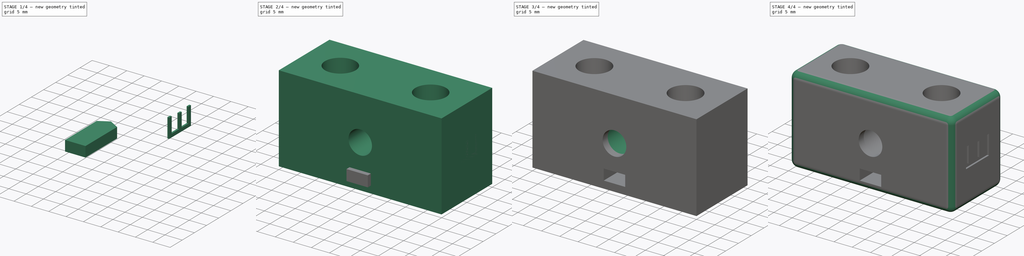
[diagram: build sequence overview — one tinted view per stage of 4, left to right]
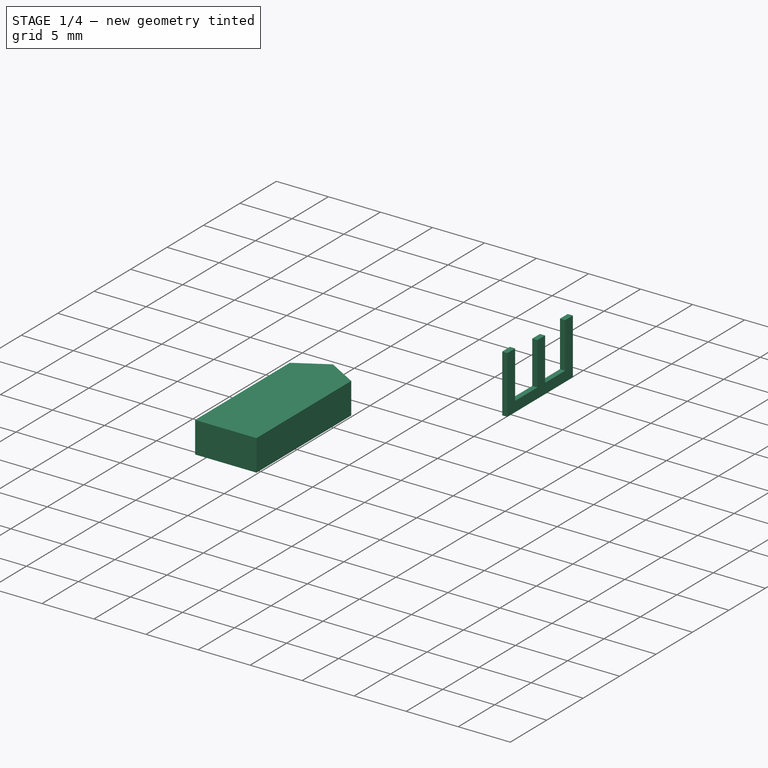
[diagram: stage 1 of 4 — iso view after this stage's code; geometry added in this stage tinted green]
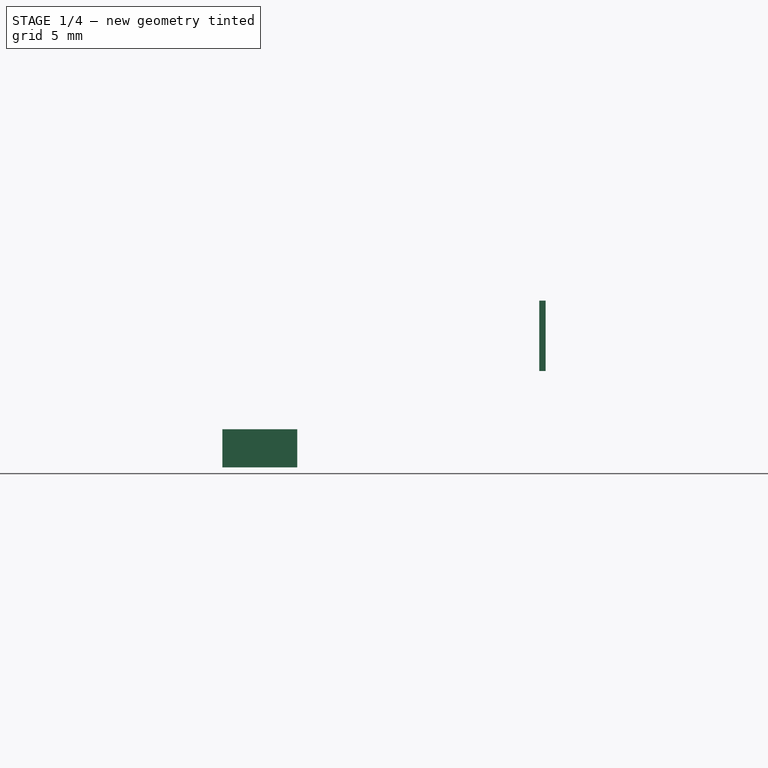
[diagram: stage 1 of 4 — front view after this stage's code; geometry added in this stage tinted green]
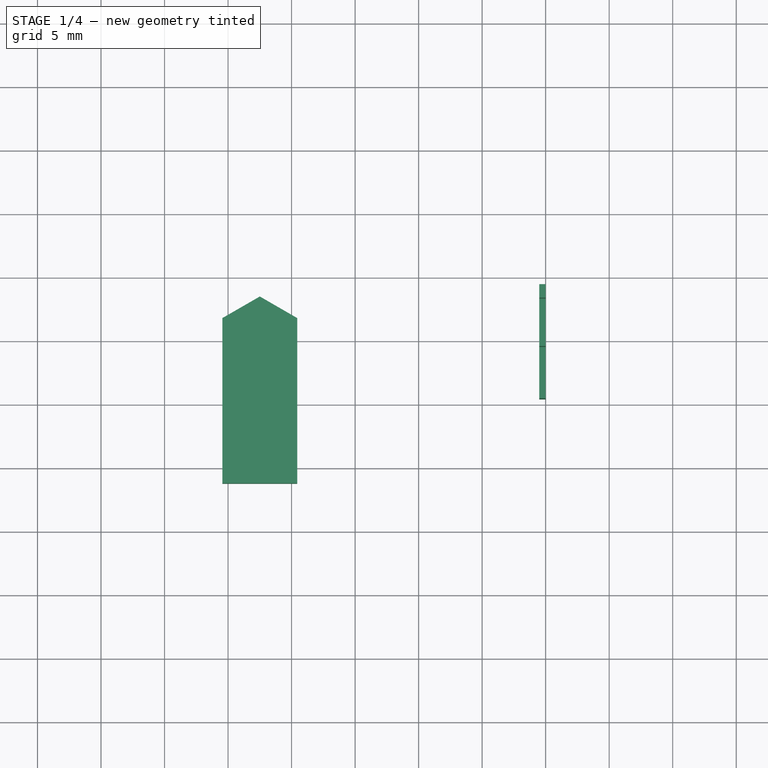
[diagram: stage 1 of 4 — top view after this stage's code; geometry added in this stage tinted green]
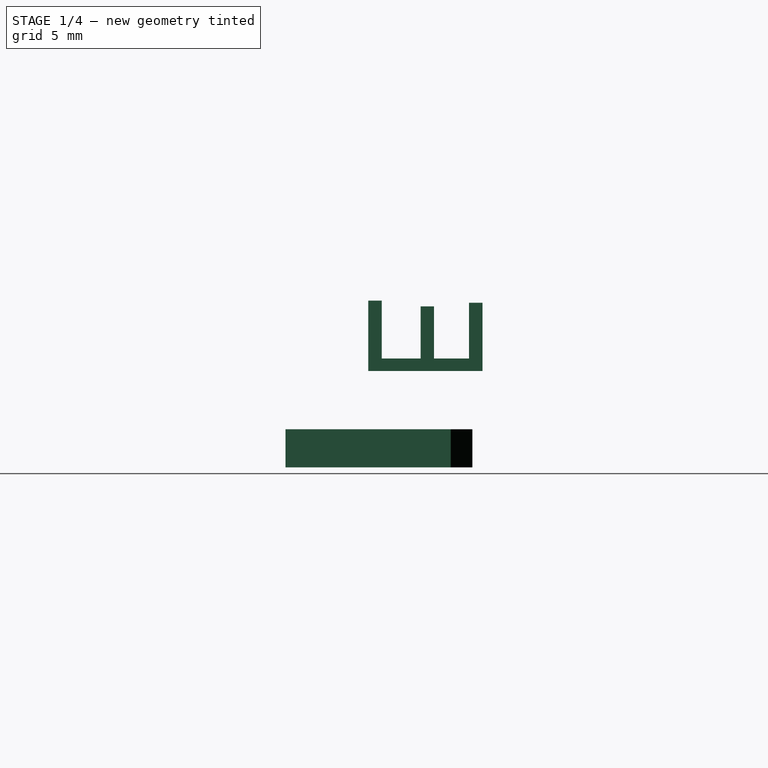
[diagram: stage 1 of 4 — right view after this stage's code; geometry added in this stage tinted green]
FCSTD DOCUMENT
Label: laser-holder
objects: Sketcher::SketchObject×5, PartDesign::Pocket×3, PartDesign::Pad×2, Part::Cut×2, Part::Feature×1, Part::Extrusion×1, Part::Fillet×1
note: 20 computed .brp shape members not serialized (recipe doc carries the construction recipe); baked Part::Feature solids carry a one-line shape summary decoded from their .brp

FEATURE [Sketcher::SketchObject] Sketch005  label="Sketch M3"
  Placement = pos=(22.5,13.5,5) rot=(1,0,0;3.14159rad)
  sketch-geometry (6):
    g0: LineSegment StartX=-2.95 StartY=14.7032 StartZ=0 EndX=-2.95 EndY=1.70318 EndZ=0
    g1: LineSegment StartX=-2.95 StartY=1.70318 StartZ=0 EndX=0 EndY=0 EndZ=0
    g2: LineSegment StartX=0 StartY=0 StartZ=0 EndX=2.95 EndY=1.70318 EndZ=0
    g3: LineSegment StartX=2.95 StartY=1.70318 StartZ=0 EndX=2.95 EndY=14.7032 EndZ=0
    g4: LineSegment StartX=2.95 StartY=14.7032 StartZ=0 EndX=-2.95 EndY=14.7032 EndZ=0
    g5: LineSegment [constr] StartX=0 StartY=0 StartZ=0 EndX=0 EndY=14.7032 EndZ=0
  constraints (17):
    c: Vertical(g0)
    c: Coincident(g0,g1)
    c: Coincident(g1,g2)
    c: Coincident(g2,g3)
    c: Vertical(g3)
    c: Coincident(g3,g4)
    c: Coincident(g4,g0)
    c: Horizontal(g4)
    c: Coincident(g5,g1)
    c: PointOnObject(g5,g4)
    c: Vertical(g5)
    c: Symmetric(g0,g2,g5)
    c: Angle(g2,g1) = 2.0944
    c: DistanceY(g3) = 13
    c: DistanceX(g4) = -5.9
    c: PointOnObject(g1,g-2)
    c: PointOnObject(g1,g-1)
FEATURE [PartDesign::Pad] Pad001  label="Alojamiento tuerca M3"
  Length = 3
  Length2 = 100
  Placement = pos=(22.5,13.5,5) rot=(1,0,0;3.14159rad)
  Sketch = -> Sketch005
  Type = 0
FEATURE [Part::Feature] path2990  label="Letra E"
  Placement = pos=(45,10,10) rot=(0,-1,0;1.5708rad)
  shape: bbox 2.2e-07 x 8.988 x 5.542 mm, 0 faces, 0 solids (baked)
FEATURE [Part::Extrusion] Extrude001  label="Letra E extruida"
  Base = -> path2990
  Dir = (-0.5,0,0)
  Solid = true
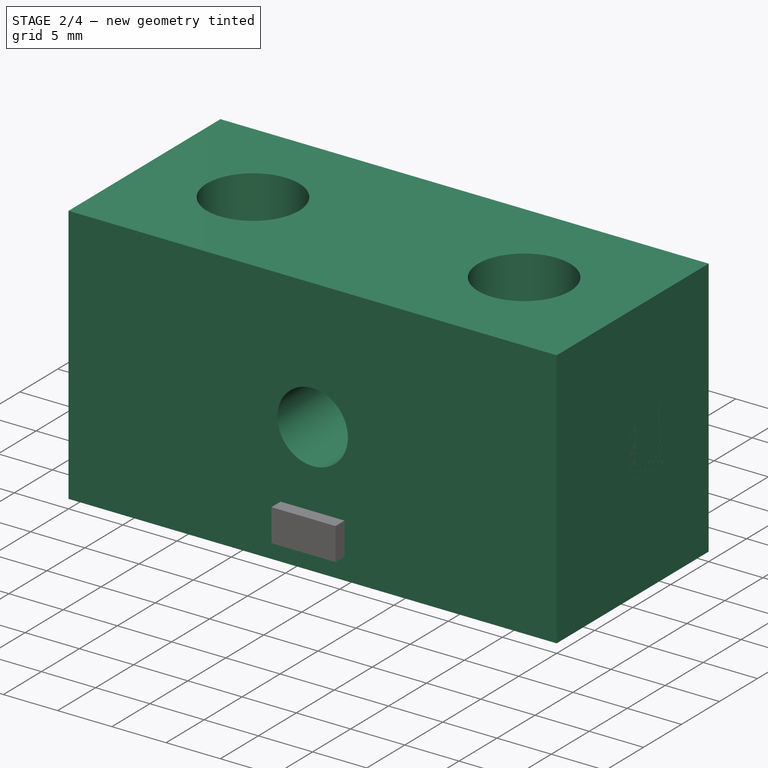
[diagram: stage 2 of 4 — iso view after this stage's code; geometry added in this stage tinted green]
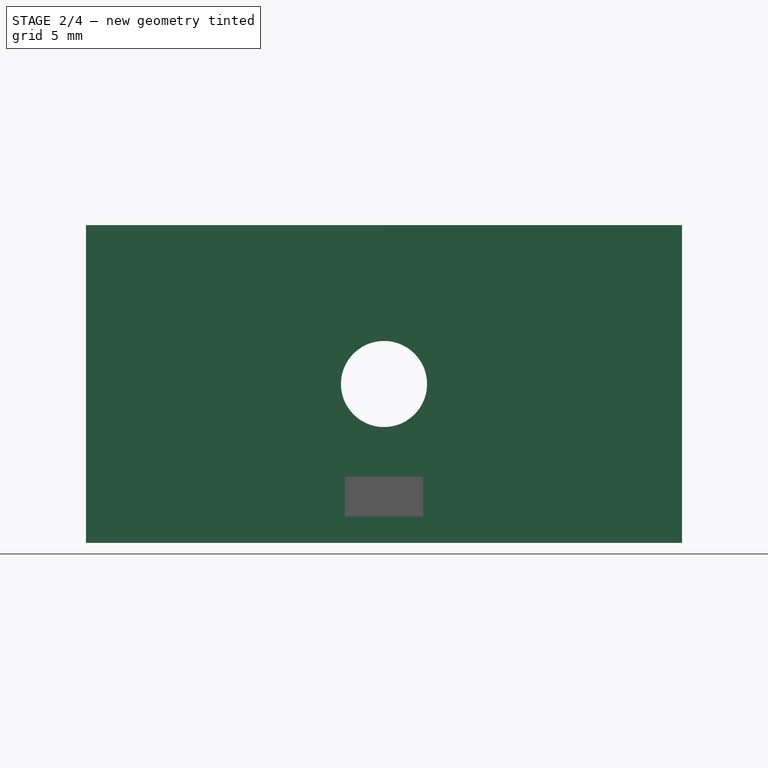
[diagram: stage 2 of 4 — front view after this stage's code; geometry added in this stage tinted green]
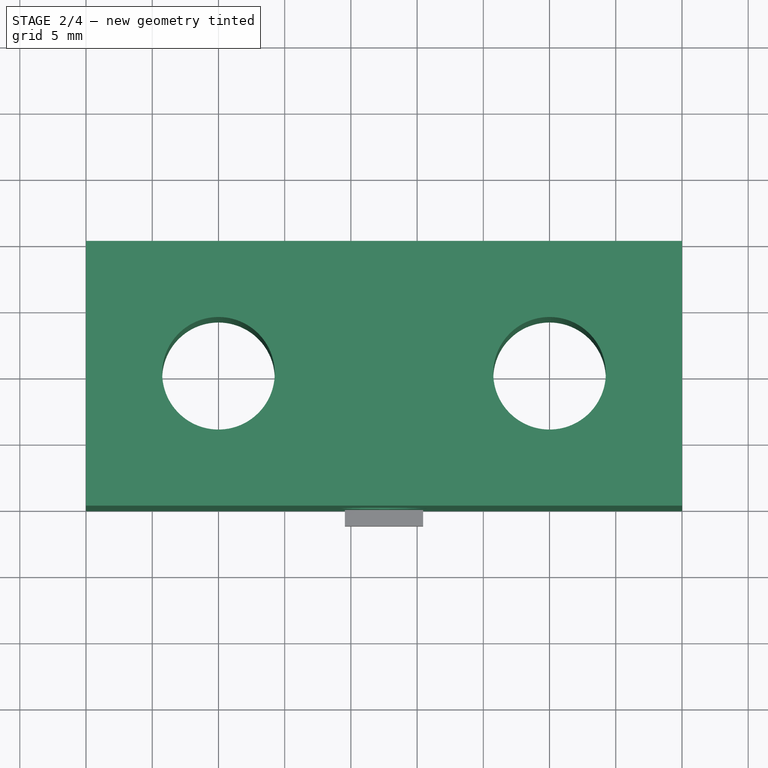
[diagram: stage 2 of 4 — top view after this stage's code; geometry added in this stage tinted green]
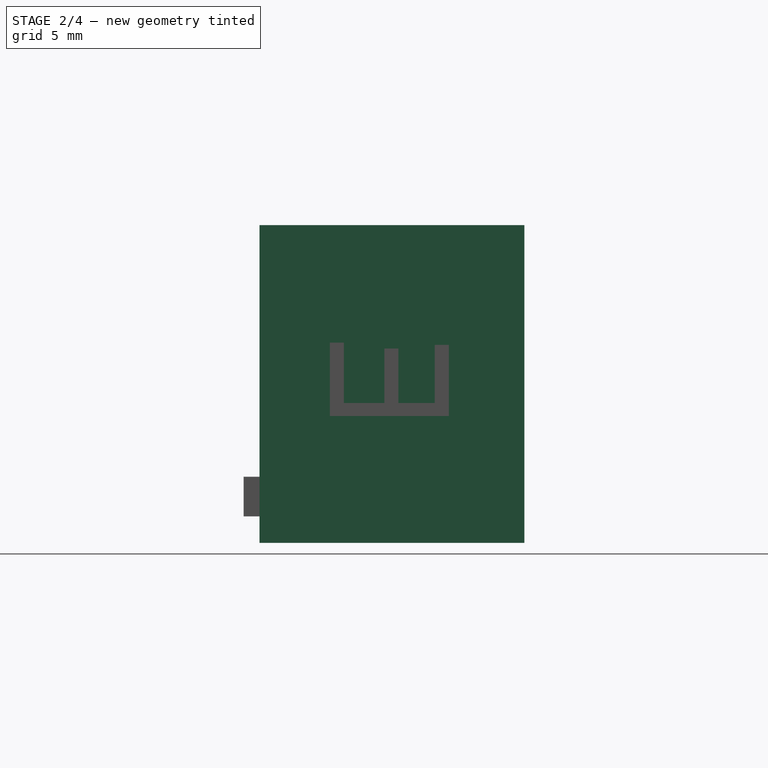
[diagram: stage 2 of 4 — right view after this stage's code; geometry added in this stage tinted green]
FEATURE [Sketcher::SketchObject] Sketch  label="Sketch principal"
  sketch-geometry (7):
    g0: LineSegment StartX=45 StartY=20 StartZ=0 EndX=0 EndY=20 EndZ=0
    g1: LineSegment StartX=0 StartY=20 StartZ=0 EndX=0 EndY=0 EndZ=0
    g2: LineSegment StartX=0 StartY=0 StartZ=0 EndX=45 EndY=0 EndZ=0
    g3: Circle CenterX=10 CenterY=10 CenterZ=0 NormalX=0 NormalY=0 NormalZ=1 Radius=4.25
    g4: LineSegment StartX=45 StartY=20 StartZ=0 EndX=45 EndY=0 EndZ=0
    g5: Circle CenterX=35 CenterY=10 CenterZ=0 NormalX=0 NormalY=0 NormalZ=1 Radius=4.25
    g6: LineSegment [constr] StartX=22.5 StartY=20 StartZ=0 EndX=22.5 EndY=0 EndZ=0
  constraints (20):
    c: Horizontal(g0)
    c: Coincident(g0,g1)
    c: Vertical(g1)
    c: Coincident(g1,g2)
    c: Horizontal(g2)
    c: DistanceX(g0) = -45
    c: DistanceY(g1) = -20
    c: Radius(g3) = 4.25
    c: Vertical(g4)
    c: Coincident(g4,g0)
    c: Coincident(g4,g2)
    c: Coincident(g1,g-1)
    c: Distance(g3,g2) = 10
    c: Distance(g3,g1) = 10
    c: Vertical(g6)
    c: Distance(g6,g1) = 22.5
    c: Symmetric(g3,g5,g6)
    c: Equal(g5,g3)
    c: PointOnObject(g6,g0)
    c: PointOnObject(g6,g2)
FEATURE [PartDesign::Pad] Pad  label="Bloque principal"
  Length = 24
  Length2 = 100
  Sketch = -> Sketch
  Type = 0
FEATURE [Sketcher::SketchObject] Sketch001  label="Sketch 6.5mm"
  ExternalGeometry = -> [Pad]
  Placement = pos=(0,0,0) rot=(1,0,0;1.5708rad)
  Support = -> Pad [Face3]
  sketch-geometry (1):
    g0: Circle CenterX=22.5 CenterY=12 CenterZ=0 NormalX=0 NormalY=0 NormalZ=1 Radius=3.25
  constraints (3):
    c: Distance(g0,g-4) = 22.5
    c: Distance(g0,g-3) = 12
    c: Radius(g0) = 3.25
FEATURE [PartDesign::Pocket] Pocket  label="Agujero 6.5mm"
  Length = 5
  Sketch = -> Sketch001
  Type = 1
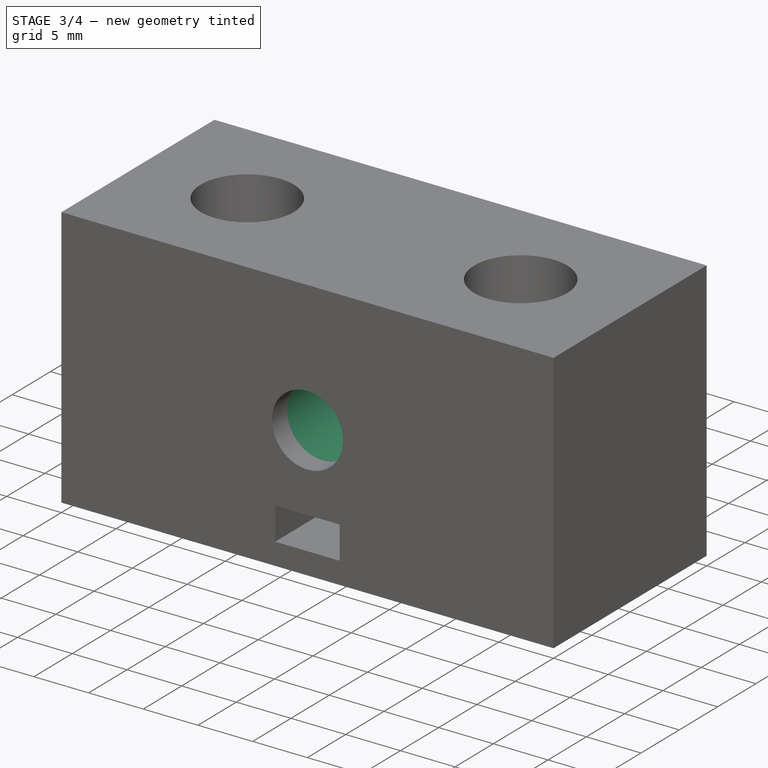
[diagram: stage 3 of 4 — iso view after this stage's code; geometry added in this stage tinted green]
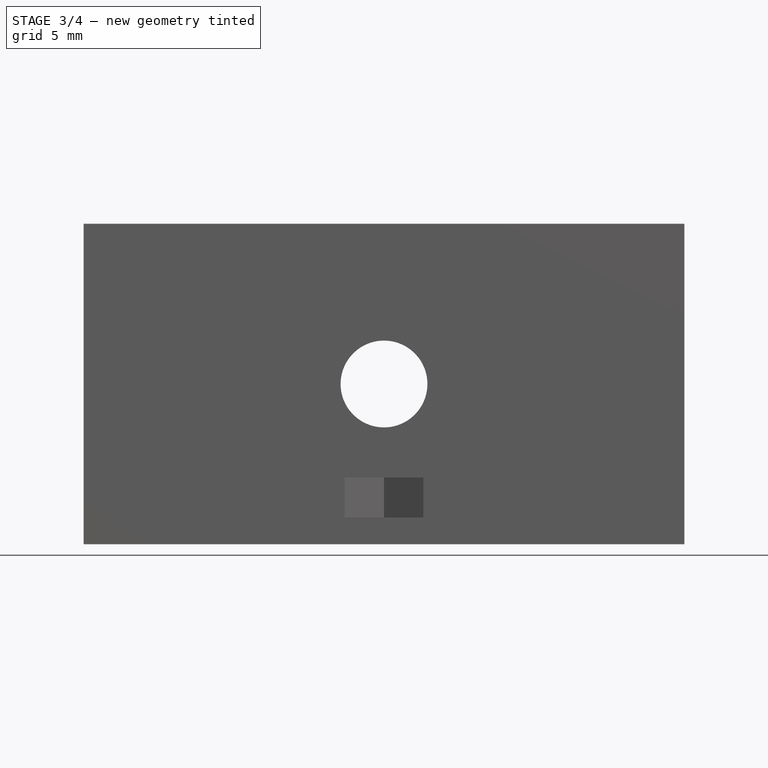
[diagram: stage 3 of 4 — front view after this stage's code; geometry added in this stage tinted green]
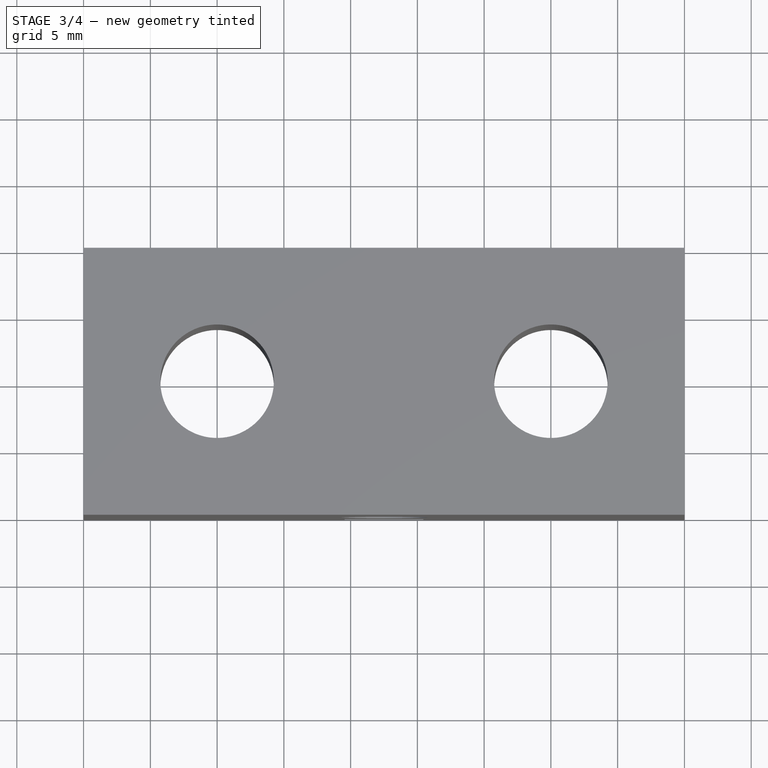
[diagram: stage 3 of 4 — top view after this stage's code; geometry added in this stage tinted green]
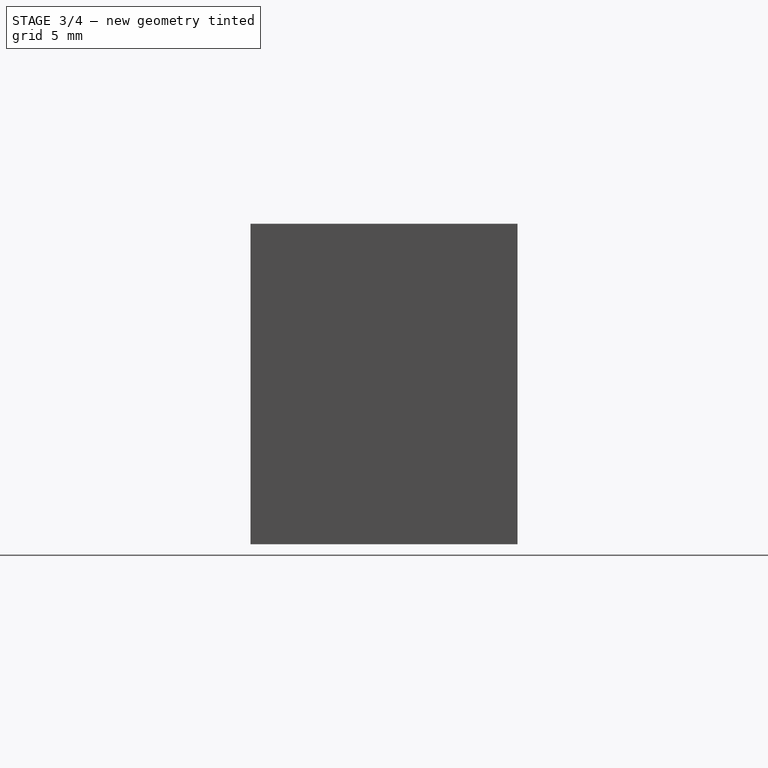
[diagram: stage 3 of 4 — right view after this stage's code; geometry added in this stage tinted green]
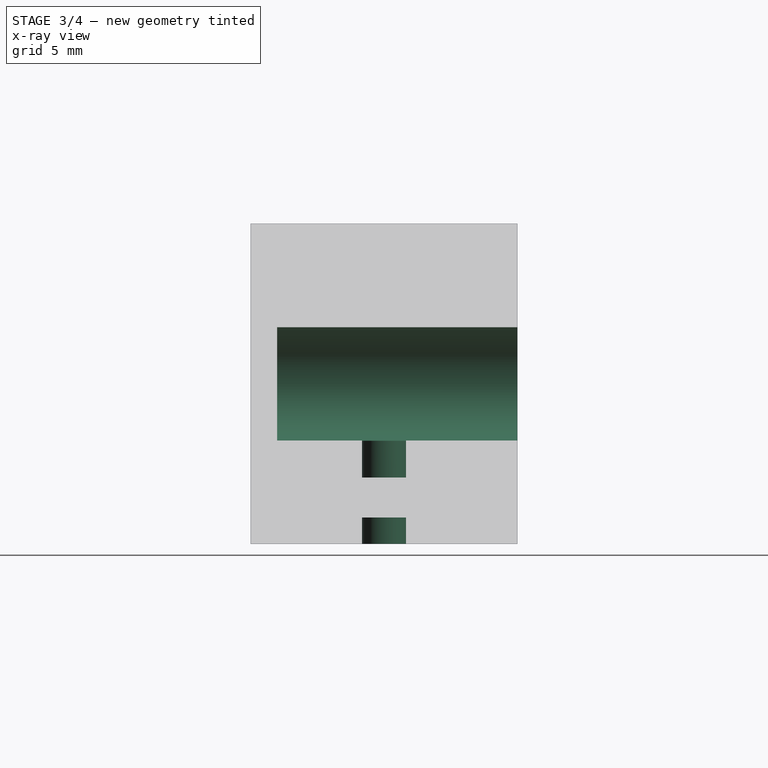
[diagram: stage 3 of 4 — x-ray composite at the right view; earlier geometry ghosted, this stage's added geometry solid]
FEATURE [Sketcher::SketchObject] Sketch003  label="Sketch 8.5mm"
  ExternalGeometry = -> [Pocket]
  Placement = pos=(0,20,0) rot=(0,0.707107,0.707107;3.14159rad)
  Support = -> Pocket [Face1]
  sketch-geometry (1):
    g0: Circle CenterX=-22.5 CenterY=12 CenterZ=0 NormalX=0 NormalY=0 NormalZ=1 Radius=4.25
  constraints (2):
    c: Coincident(g0,g-3)
    c: Radius(g0) = 4.25
FEATURE [PartDesign::Pocket] Pocket001  label="Agujero 8.5mm"
  Length = 18
  Sketch = -> Sketch003
  Type = 0
FEATURE [Sketcher::SketchObject] Sketch004  label="Sketch 3.3mm"
  Placement = pos=(0,0,0) rot=(1,0,0;3.14159rad)
  Support = -> Pocket001 [Face3]
  sketch-geometry (1):
    g0: Circle CenterX=22.5 CenterY=-10 CenterZ=0 NormalX=0 NormalY=0 NormalZ=1 Radius=1.65
  constraints (3):
    c: DistanceY(g-1,g0) = -10
    c: DistanceX(g-1,g0) = 22.5
    c: Radius(g0) = 1.65
FEATURE [PartDesign::Pocket] Pocket002  label="Agujero 3.3mm"
  Length = 7.75
  Sketch = -> Sketch004
  Type = 0
FEATURE [Part::Cut] Cut  label="Corte Tuerca M3"
  Base = -> Pocket002
  Tool = -> Pad001
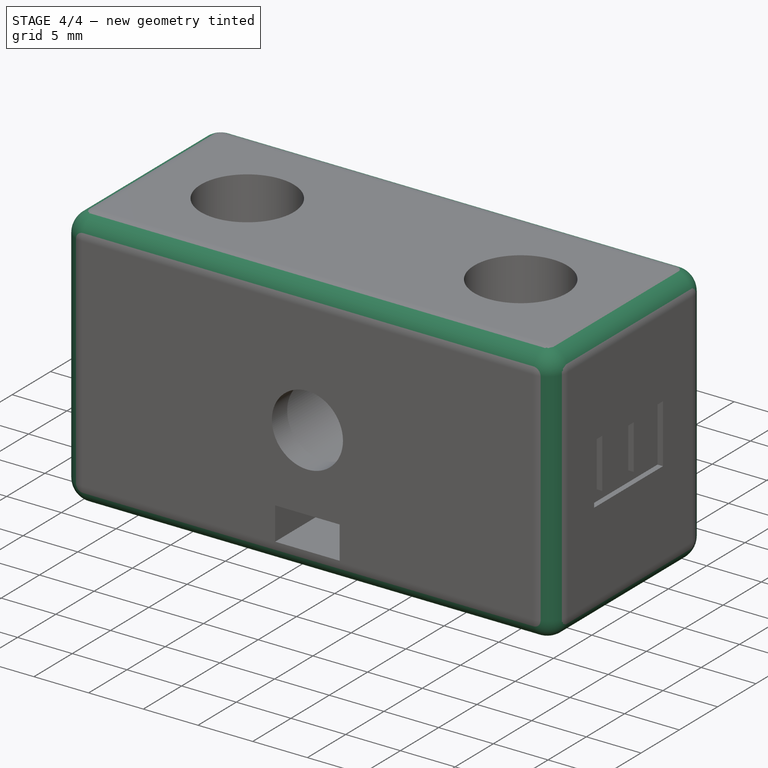
[diagram: stage 4 of 4 — iso view after this stage's code; geometry added in this stage tinted green]
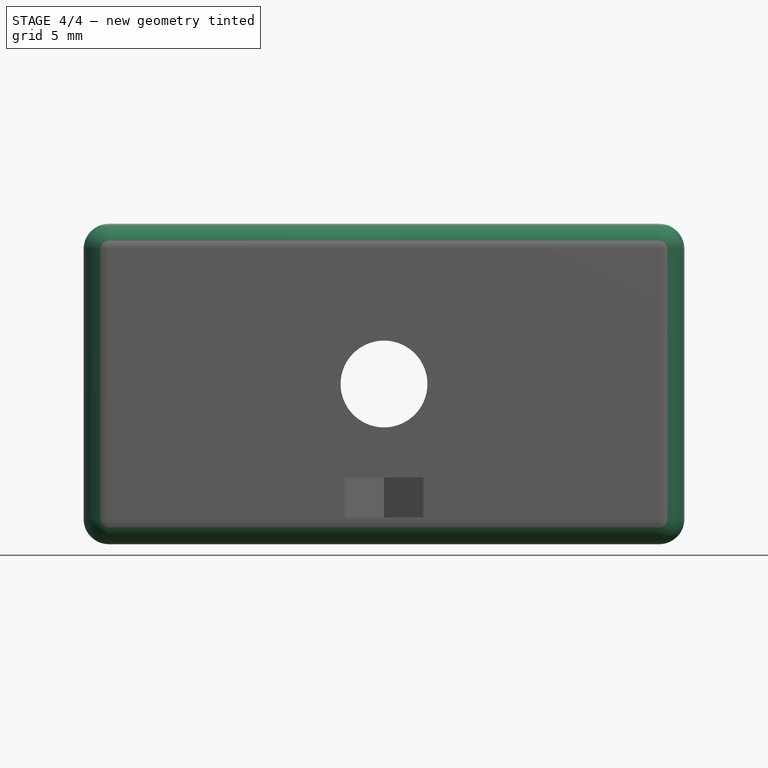
[diagram: stage 4 of 4 — front view after this stage's code; geometry added in this stage tinted green]
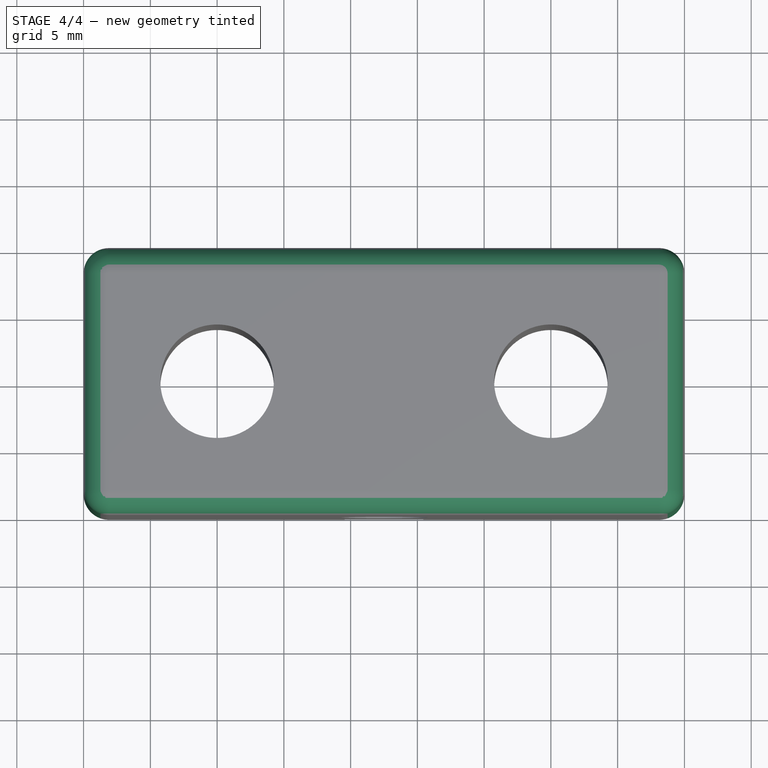
[diagram: stage 4 of 4 — top view after this stage's code; geometry added in this stage tinted green]
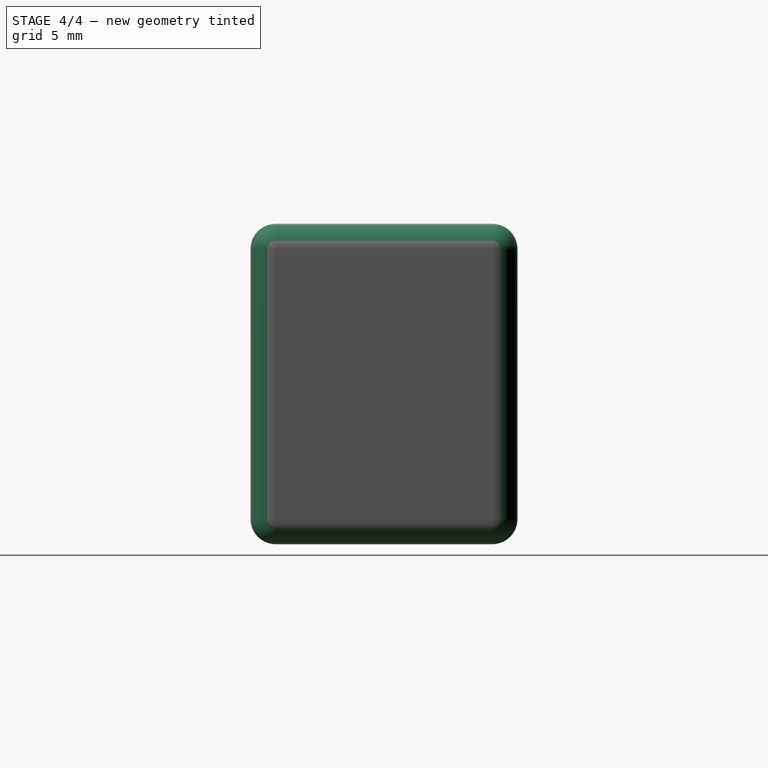
[diagram: stage 4 of 4 — right view after this stage's code; geometry added in this stage tinted green]
FEATURE [Part::Cut] Cut001  label="Corte Letra E"
  Base = -> Cut
  Tool = -> Extrude001
FEATURE [Part::Fillet] Fillet  label="Redondeo de bordes"
  Base = -> Cut001
  Edges = 12 edges r=1.9: [Edge1,Edge2,Edge3,Edge4,Edge6,Edge7,Edge8,Edge21,Edge22,Edge26,Edge27,Edge30]
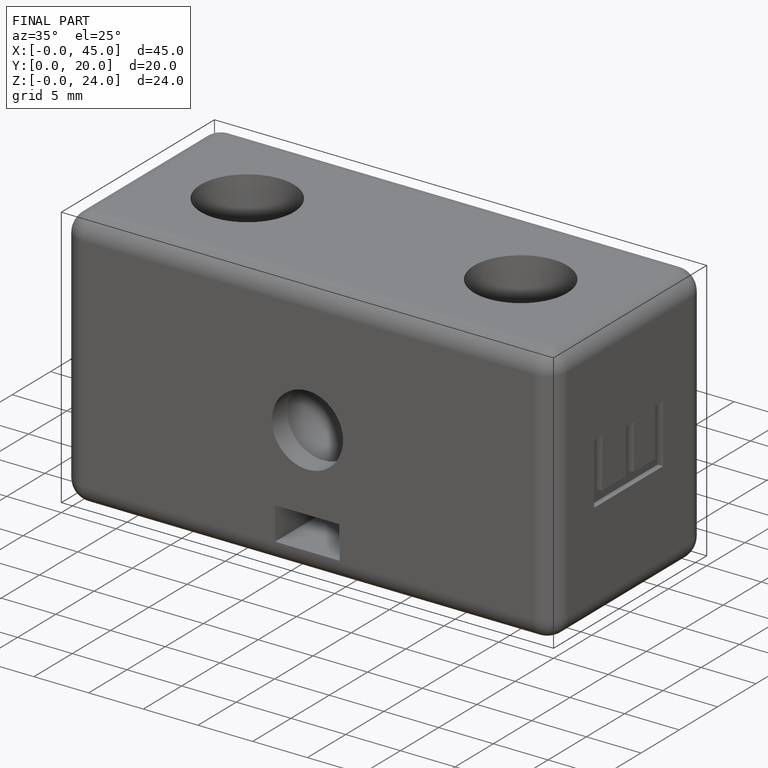
[diagram: finished part — iso view with bounding-box wireframe]
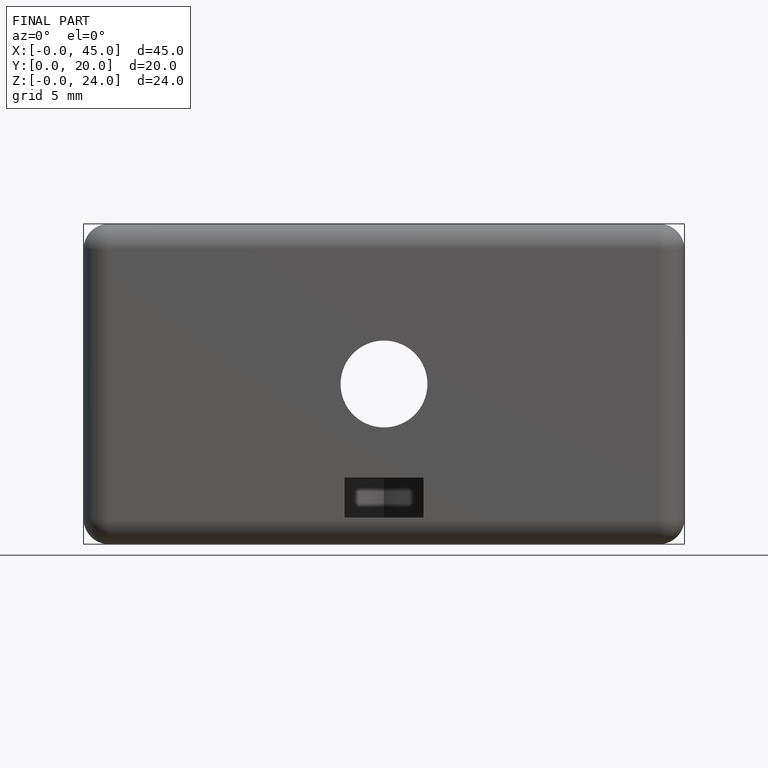
[diagram: finished part — front view with bounding-box wireframe]
